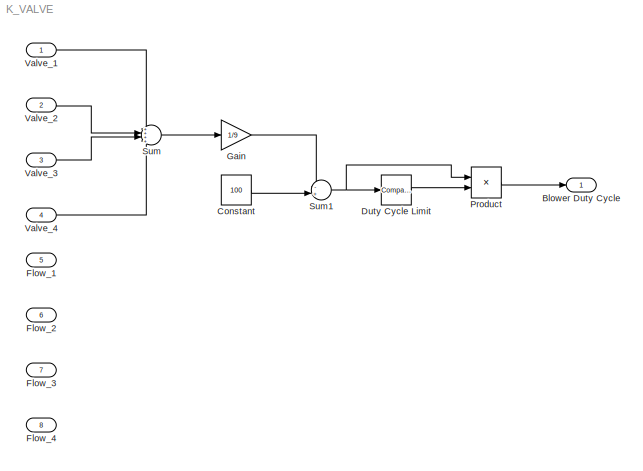
MODEL K_VALVE
KIND model
BLOCK [Outport] Blower Duty Cycle
  IconDisplay = Port number
  SID = 27
BLOCK [Constant] Constant
  SID = 25
  Value = 100
BLOCK [Reference] Duty Cycle Limit  REF=simulink/Logic and Bit\nOperations/Compare\nTo Constant
  FunctionWithSeparateData = off
  GeneratePreprocessorConditionals = off
  LogicOutDataTypeMode = uint8
  Ports = [1, 1]
  RTWMemSecDataConstants = Inherit from model
  RTWMemSecDataInternal = Inherit from model
  RTWMemSecDataParameters = Inherit from model
  RTWMemSecFuncExecute = Inherit from model
  RTWMemSecFuncInitTerm = Inherit from model
  SID = 28
  ShowPortLabels = FromPortIcon
  SourceBlock = simulink/Logic and Bit\nOperations/Compare\nTo Constant
  SourceType = Compare To Constant
  SystemSampleTime = -1
  ZeroCross = on
  const = 60
  relop = >
BLOCK [Inport] Flow_1
  IconDisplay = Port number
  Port = 5
  SID = 19
BLOCK [Inport] Flow_2
  IconDisplay = Port number
  Port = 6
  SID = 20
BLOCK [Inport] Flow_3
  IconDisplay = Port number
  Port = 7
  SID = 21
BLOCK [Inport] Flow_4
  IconDisplay = Port number
  Port = 8
  SID = 22
BLOCK [Gain] Gain
  Gain = 1/9
  OutDataTypeStr = Inherit: Inherit via internal rule
  ParamDataTypeStr = Inherit: Inherit via internal rule
  SID = 24
  SaturateOnIntegerOverflow = off
BLOCK [Product] Product
  InputSameDT = off
  OutDataTypeStr = Inherit: Inherit via internal rule
  Ports = [2, 1]
  SID = 31
  SaturateOnIntegerOverflow = off
BLOCK [Sum] Sum
  IconShape = round
  InputSameDT = off
  Inputs = ++++
  OutDataTypeStr = Inherit: Inherit via internal rule
  Ports = [4, 1]
  SID = 23
  SaturateOnIntegerOverflow = off
BLOCK [Sum] Sum1
  IconShape = round
  InputSameDT = off
  Inputs = -+|
  OutDataTypeStr = Inherit: Inherit via internal rule
  Ports = [2, 1]
  SID = 26
  SaturateOnIntegerOverflow = off
BLOCK [Inport] Valve_1
  IconDisplay = Port number
  SID = 5
BLOCK [Inport] Valve_2
  IconDisplay = Port number
  Port = 2
  SID = 10
BLOCK [Inport] Valve_3
  IconDisplay = Port number
  Port = 3
  SID = 13
BLOCK [Inport] Valve_4
  IconDisplay = Port number
  Port = 4
  SID = 16
LINE Constant:1 -> Sum1:2
LINE Duty Cycle Limit:1 -> Product:2
LINE Gain:1 -> Sum1:1
LINE Product:1 -> Blower Duty Cycle:1
NET Sum1:1 -> Duty Cycle Limit:1, Product:1
LINE Sum:1 -> Gain:1
LINE Valve_1:1 -> Sum:1
LINE Valve_2:1 -> Sum:2
LINE Valve_3:1 -> Sum:3
LINE Valve_4:1 -> Sum:4
note: NET lines group one-source signal fan-out (src -> all destinations, sorted); 1:1 wires keep LINE
